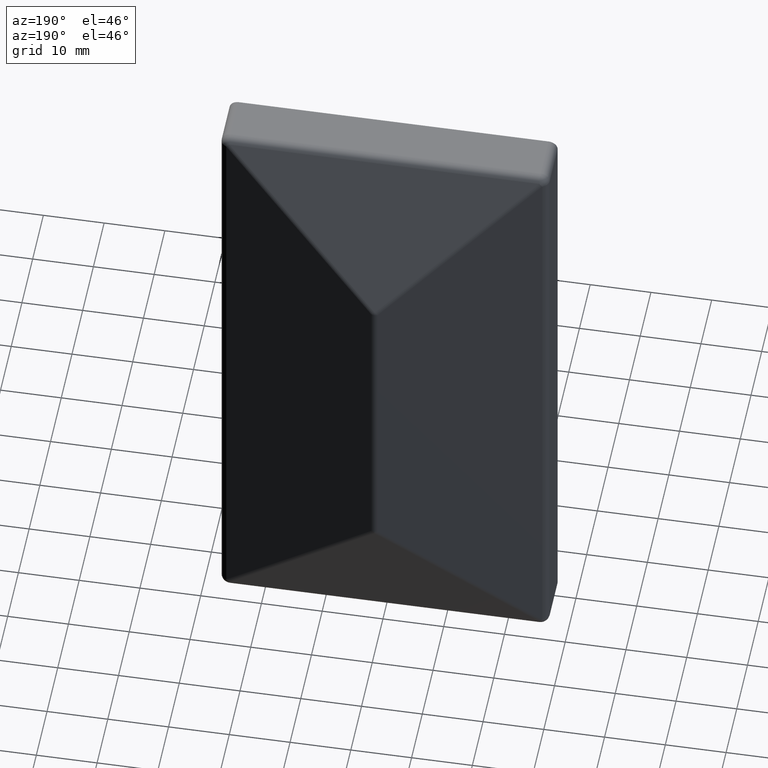
[diagram: clean part render]
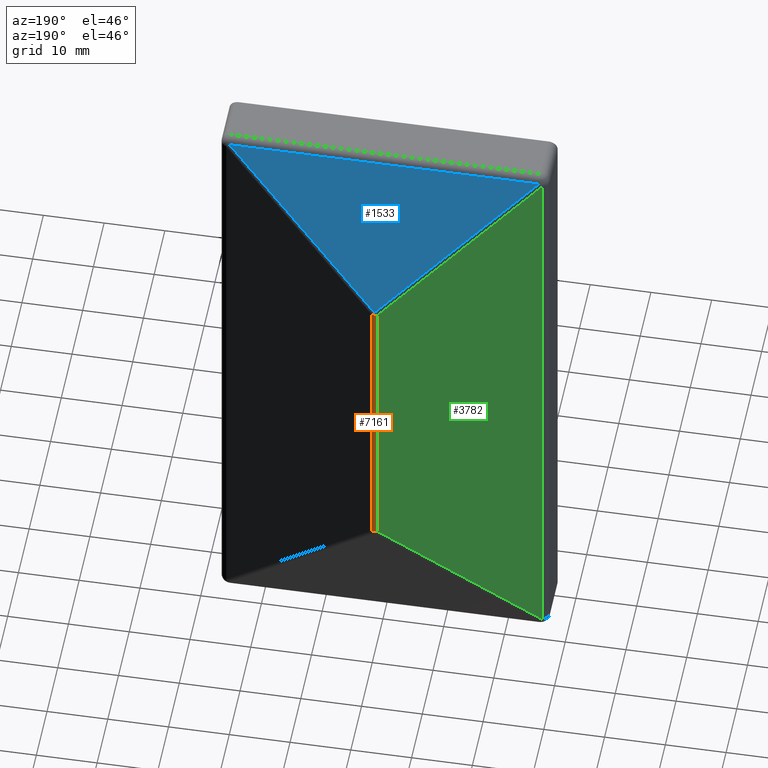
[diagram: same view with three faces highlighted in distinct colors, each labeled with its STEP entity id]
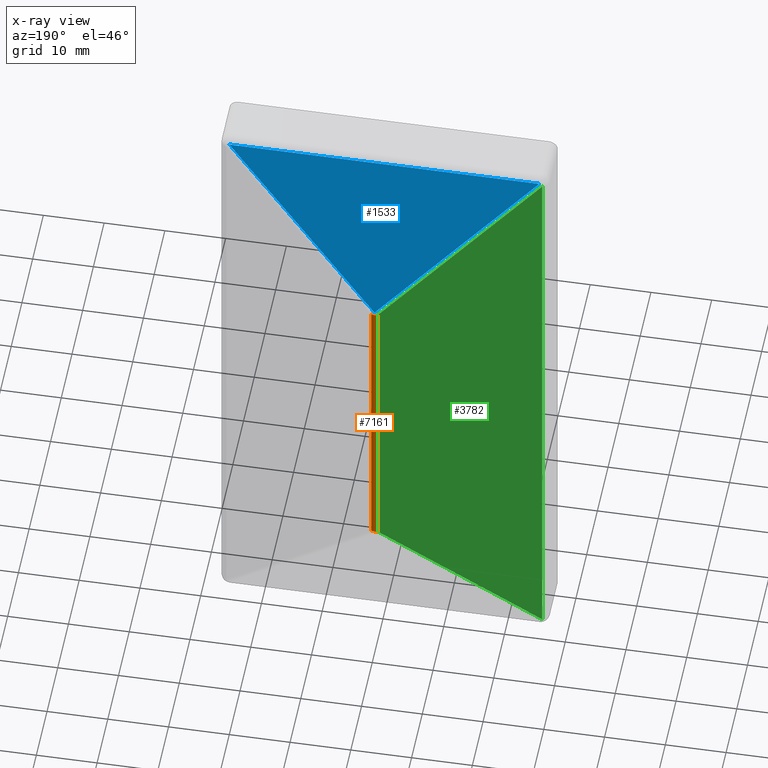
[diagram: x-ray of the same camera — body ghosted, the three highlighted faces saturated]
A machine part, auxiliary view with three faces highlighted in distinct colors.
The next image is the same camera in x-ray (body ghosted, the three faces saturated) — at least one of them is partly hidden behind the body in this view.
Their STEP definitions:

[orange] entity #7161 — the highlighted cylindrical surface (edge-blend (fillet) strip) has radius 1.5 mm, axis along (-0, -0, 1).
#129 = EDGE_CURVE ( 'NONE', #1323, #7969, #740, .T. ) ;
#451 = DIRECTION ( 'NONE',  ( 1.000000000000000000, 0.000000000000000000, 0.000000000000000000 ) ) ;
#610 = CIRCLE ( 'NONE', #1787, 1.500000000000001776 ) ;
#681 = CARTESIAN_POINT ( 'NONE',  ( 0.000000000000000000, 16.49999999999999645, -25.23718128420355811 ) ) ;
#740 = LINE ( 'NONE', #9861, #12345 ) ;
#857 = ORIENTED_EDGE ( 'NONE', *, *, #9942, .T. ) ;
#1170 = VECTOR ( 'NONE', #14170, 1000.000000000000000 ) ;
#1323 = VERTEX_POINT ( 'NONE', #7469 ) ;
#1343 = LINE ( 'NONE', #9575, #1170 ) ;
#1787 = AXIS2_PLACEMENT_3D ( 'NONE', #681, #3941, #11689 ) ;
#1999 = CYLINDRICAL_SURFACE ( 'NONE', #4924, 1.500000000000001776 ) ;
#2139 = ORIENTED_EDGE ( 'NONE', *, *, #8632, .T. ) ;
#2734 = DIRECTION ( 'NONE',  ( -0.000000000000000000, -0.000000000000000000, 1.000000000000000000 ) ) ;
#3081 = ORIENTED_EDGE ( 'NONE', *, *, #6047, .T. ) ;
#3941 = DIRECTION ( 'NONE',  ( -0.000000000000000000, -0.000000000000000000, 1.000000000000000000 ) ) ;
#4103 = EDGE_LOOP ( 'NONE', ( #11107, #2139, #13730, #3081, #6384, #857 ) ) ;
#4363 = DIRECTION ( 'NONE',  ( 1.000000000000000000, -1.619075244245018167E-14, 0.000000000000000000 ) ) ;
#4674 = CARTESIAN_POINT ( 'NONE',  ( 0.000000000000000000, 16.49999999999999645, 25.23718128420355455 ) ) ;
#4817 = CARTESIAN_POINT ( 'NONE',  ( 0.5066084845186207275, 17.91185971095351448, 25.23718128420354390 ) ) ;
#4924 = AXIS2_PLACEMENT_3D ( 'NONE', #11636, #2734, #451 ) ;
#4951 = CIRCLE ( 'NONE', #10727, 1.500000000000001776 ) ;
#5581 = DIRECTION ( 'NONE',  ( -0.000000000000000000, -0.000000000000000000, 1.000000000000000000 ) ) ;
#5889 = DIRECTION ( 'NONE',  ( 0.000000000000000000, 0.000000000000000000, -1.000000000000000000 ) ) ;
#6047 = EDGE_CURVE ( 'NONE', #11166, #8748, #1343, .T. ) ;
#6384 = ORIENTED_EDGE ( 'NONE', *, *, #8834, .T. ) ;
#6768 = EDGE_CURVE ( 'NONE', #8899, #11166, #4951, .T. ) ;
#6811 = CIRCLE ( 'NONE', #13724, 1.500000000000001776 ) ;
#6977 = CIRCLE ( 'NONE', #10593, 1.500000000000001776 ) ;
#7161 = ADVANCED_FACE ( 'NONE', ( #14306 ), #1999, .T. ) ;
#7258 = CARTESIAN_POINT ( 'NONE',  ( 0.000000000000000000, 16.49999999999999645, 25.23718128420355455 ) ) ;
#7469 = CARTESIAN_POINT ( 'NONE',  ( 0.5066084845186146213, 17.91185971095351803, -25.23718128420354745 ) ) ;
#7894 = CARTESIAN_POINT ( 'NONE',  ( -0.5066084845186137331, 17.91185971095351803, -25.23718128420354034 ) ) ;
#7969 = VERTEX_POINT ( 'NONE', #4817 ) ;
#8092 = CARTESIAN_POINT ( 'NONE',  ( 0.000000000000000000, 17.99999999999999645, -25.23718128420355455 ) ) ;
#8540 = VERTEX_POINT ( 'NONE', #11741 ) ;
#8632 = EDGE_CURVE ( 'NONE', #1323, #8899, #610, .T. ) ;
#8748 = VERTEX_POINT ( 'NONE', #11061 ) ;
#8834 = EDGE_CURVE ( 'NONE', #8748, #8540, #6811, .T. ) ;
#8899 = VERTEX_POINT ( 'NONE', #8092 ) ;
#9202 = DIRECTION ( 'NONE',  ( 1.000000000000000000, -1.156482317317870029E-14, 0.000000000000000000 ) ) ;
#9575 = CARTESIAN_POINT ( 'NONE',  ( -0.5066084845186160646, 17.91185971095351803, -51.99999999999998579 ) ) ;
#9861 = CARTESIAN_POINT ( 'NONE',  ( 0.5066084845186160646, 17.91185971095351803, -51.99999999999998579 ) ) ;
#9942 = EDGE_CURVE ( 'NONE', #8540, #7969, #6977, .T. ) ;
#10593 = AXIS2_PLACEMENT_3D ( 'NONE', #7258, #13988, #4363 ) ;
#10727 = AXIS2_PLACEMENT_3D ( 'NONE', #12210, #5581, #12062 ) ;
#10925 = DIRECTION ( 'NONE',  ( -0.000000000000000000, -0.000000000000000000, 1.000000000000000000 ) ) ;
#11061 = CARTESIAN_POINT ( 'NONE',  ( -0.5066084845186120678, 17.91185971095351803, 25.23718128420350482 ) ) ;
#11107 = ORIENTED_EDGE ( 'NONE', *, *, #129, .F. ) ;
#11166 = VERTEX_POINT ( 'NONE', #7894 ) ;
#11636 = CARTESIAN_POINT ( 'NONE',  ( 0.000000000000000000, 16.49999999999999645, -51.99999999999998579 ) ) ;
#11689 = DIRECTION ( 'NONE',  ( 1.000000000000000000, 0.000000000000000000, 0.000000000000000000 ) ) ;
#11741 = CARTESIAN_POINT ( 'NONE',  ( 0.000000000000000000, 18.00000000000000000, 25.23718128420355455 ) ) ;
#12062 = DIRECTION ( 'NONE',  ( 1.000000000000000000, 0.000000000000000000, 0.000000000000000000 ) ) ;
#12210 = CARTESIAN_POINT ( 'NONE',  ( 0.000000000000000000, 16.49999999999999645, -25.23718128420355811 ) ) ;
#12345 = VECTOR ( 'NONE', #10925, 1000.000000000000000 ) ;
#13724 = AXIS2_PLACEMENT_3D ( 'NONE', #4674, #5889, #9202 ) ;
#13730 = ORIENTED_EDGE ( 'NONE', *, *, #6768, .T. ) ;
#13988 = DIRECTION ( 'NONE',  ( 0.000000000000000000, 0.000000000000000000, -1.000000000000000000 ) ) ;
#14170 = DIRECTION ( 'NONE',  ( -0.000000000000000000, -0.000000000000000000, 1.000000000000000000 ) ) ;
#14306 = FACE_OUTER_BOUND ( 'NONE', #4103, .T. ) ;

[blue] entity #1533 — the highlighted planar face has unit normal (0, -0.9402, -0.3405).
#165 = DIRECTION ( 'NONE',  ( -0.6883895053484736515, -0.2470103519191580166, 0.6819866384107957646 ) ) ;
#414 = EDGE_CURVE ( 'NONE', #1151, #14138, #4890, .T. ) ;
#1151 = VERTEX_POINT ( 'NONE', #11228 ) ;
#1533 = ADVANCED_FACE ( 'NONE', ( #7797 ), #10967, .F. ) ;
#2310 = ORIENTED_EDGE ( 'NONE', *, *, #414, .T. ) ;
#2681 = ORIENTED_EDGE ( 'NONE', *, *, #5233, .T. ) ;
#3256 = CARTESIAN_POINT ( 'NONE',  ( -27.00000000000000000, 17.91034305787609782, 25.74799676860147457 ) ) ;
#3312 = DIRECTION ( 'NONE',  ( 0.000000000000000000, -0.9402287052507363185, -0.3405436562652782717 ) ) ;
#3891 = CARTESIAN_POINT ( 'NONE',  ( -27.00000000000000000, 8.760343057876109896, 51.01081548439793067 ) ) ;
#4006 = EDGE_CURVE ( 'NONE', #7709, #1151, #4997, .T. ) ;
#4201 = CARTESIAN_POINT ( 'NONE',  ( -12.79476299899575054, 13.31928104058939866, 38.42375277468811845 ) ) ;
#4890 = LINE ( 'NONE', #3891, #12847 ) ;
#4997 = LINE ( 'NONE', #4201, #6387 ) ;
#5233 = EDGE_CURVE ( 'NONE', #14138, #7709, #11233, .T. ) ;
#5347 = VECTOR ( 'NONE', #6032, 1000.000000000000114 ) ;
#6032 = DIRECTION ( 'NONE',  ( -0.6883895053484734294, 0.2470103519191580166, -0.6819866384107957646 ) ) ;
#6041 = DIRECTION ( 'NONE',  ( 1.000000000000000000, -0.000000000000000000, -0.000000000000000000 ) ) ;
#6387 = VECTOR ( 'NONE', #165, 1000.000000000000000 ) ;
#6567 = CARTESIAN_POINT ( 'NONE',  ( 25.49999999999998934, 8.760343057876109896, 51.01081548439793067 ) ) ;
#7709 = VERTEX_POINT ( 'NONE', #8814 ) ;
#7720 = DIRECTION ( 'NONE',  ( 0.000000000000000000, 0.3405436562652782717, -0.9402287052507363185 ) ) ;
#7797 = FACE_OUTER_BOUND ( 'NONE', #10148, .T. ) ;
#8814 = CARTESIAN_POINT ( 'NONE',  ( 6.938893903907228378E-15, 17.91034305787610137, 25.74799676860147457 ) ) ;
#9263 = CARTESIAN_POINT ( 'NONE',  ( -12.79476299899572922, 22.50140507516280053, 13.07224076251482003 ) ) ;
#9889 = ORIENTED_EDGE ( 'NONE', *, *, #4006, .T. ) ;
#10148 = EDGE_LOOP ( 'NONE', ( #2681, #9889, #2310 ) ) ;
#10548 = AXIS2_PLACEMENT_3D ( 'NONE', #3256, #3312, #7720 ) ;
#10967 = PLANE ( 'NONE',  #10548 ) ;
#11228 = CARTESIAN_POINT ( 'NONE',  ( -25.50000000000001421, 8.760343057876108119, 51.01081548439793067 ) ) ;
#11233 = LINE ( 'NONE', #9263, #5347 ) ;
#12847 = VECTOR ( 'NONE', #6041, 1000.000000000000000 ) ;
#14138 = VERTEX_POINT ( 'NONE', #6567 ) ;

[green] entity #3782 — the highlighted planar face has unit normal (0.3377, -0.9412, 0).
#541 = DIRECTION ( 'NONE',  ( -0.000000000000000000, -0.000000000000000000, 1.000000000000000000 ) ) ;
#545 = CARTESIAN_POINT ( 'NONE',  ( -26.71081715152341118, 8.509173071616508821, -51.19765866245627706 ) ) ;
#864 = FACE_OUTER_BOUND ( 'NONE', #3324, .T. ) ;
#1170 = VECTOR ( 'NONE', #14170, 1000.000000000000000 ) ;
#1343 = LINE ( 'NONE', #9575, #1170 ) ;
#1419 = ORIENTED_EDGE ( 'NONE', *, *, #9467, .T. ) ;
#1634 = ORIENTED_EDGE ( 'NONE', *, *, #6047, .F. ) ;
#2217 = CARTESIAN_POINT ( 'NONE',  ( -26.00660848451860119, 8.761859710953528335, 50.49999999999999289 ) ) ;
#2411 = AXIS2_PLACEMENT_3D ( 'NONE', #13812, #11583, #4957 ) ;
#2591 = EDGE_CURVE ( 'NONE', #3551, #8748, #11775, .T. ) ;
#2815 = PLANE ( 'NONE',  #2411 ) ;
#3324 = EDGE_LOOP ( 'NONE', ( #1634, #1419, #8894, #12124 ) ) ;
#3551 = VERTEX_POINT ( 'NONE', #2217 ) ;
#3782 = ADVANCED_FACE ( 'NONE', ( #864 ), #2815, .F. ) ;
#4957 = DIRECTION ( 'NONE',  ( 0.9412398073023455769, 0.3377389896790766732, 0.000000000000000000 ) ) ;
#5112 = CARTESIAN_POINT ( 'NONE',  ( -26.00660848451860119, 8.761859710953528335, -50.50000000000001421 ) ) ;
#5120 = VECTOR ( 'NONE', #541, 1000.000000000000000 ) ;
#5197 = CARTESIAN_POINT ( 'NONE',  ( 22.11431709414368285, 26.02878006564997904, 2.826658065487090532 ) ) ;
#6047 = EDGE_CURVE ( 'NONE', #11166, #8748, #1343, .T. ) ;
#6993 = DIRECTION ( 'NONE',  ( -0.6883895053484736515, -0.2470103519191579611, -0.6819866384107957646 ) ) ;
#7150 = EDGE_CURVE ( 'NONE', #7337, #3551, #10496, .T. ) ;
#7337 = VERTEX_POINT ( 'NONE', #5112 ) ;
#7894 = CARTESIAN_POINT ( 'NONE',  ( -0.5066084845186137331, 17.91185971095351803, -25.23718128420354034 ) ) ;
#8475 = DIRECTION ( 'NONE',  ( 0.6883895053484736515, 0.2470103519191579611, -0.6819866384107957646 ) ) ;
#8748 = VERTEX_POINT ( 'NONE', #11061 ) ;
#8894 = ORIENTED_EDGE ( 'NONE', *, *, #7150, .T. ) ;
#9467 = EDGE_CURVE ( 'NONE', #11166, #7337, #13254, .T. ) ;
#9575 = CARTESIAN_POINT ( 'NONE',  ( -0.5066084845186160646, 17.91185971095351803, -51.99999999999998579 ) ) ;
#10496 = LINE ( 'NONE', #12663, #5120 ) ;
#10573 = VECTOR ( 'NONE', #8475, 1000.000000000000114 ) ;
#11061 = CARTESIAN_POINT ( 'NONE',  ( -0.5066084845186120678, 17.91185971095351803, 25.23718128420350482 ) ) ;
#11166 = VERTEX_POINT ( 'NONE', #7894 ) ;
#11583 = DIRECTION ( 'NONE',  ( 0.3377389896790766732, -0.9412398073023455769, 0.000000000000000000 ) ) ;
#11775 = LINE ( 'NONE', #5197, #10573 ) ;
#12124 = ORIENTED_EDGE ( 'NONE', *, *, #2591, .T. ) ;
#12200 = VECTOR ( 'NONE', #6993, 1000.000000000000114 ) ;
#12663 = CARTESIAN_POINT ( 'NONE',  ( -26.00660848451860119, 8.761859710953528335, -51.99999999999998579 ) ) ;
#13254 = LINE ( 'NONE', #545, #12200 ) ;
#13812 = CARTESIAN_POINT ( 'NONE',  ( -26.00660848451860119, 8.761859710953528335, -51.99999999999998579 ) ) ;
#14170 = DIRECTION ( 'NONE',  ( -0.000000000000000000, -0.000000000000000000, 1.000000000000000000 ) ) ;